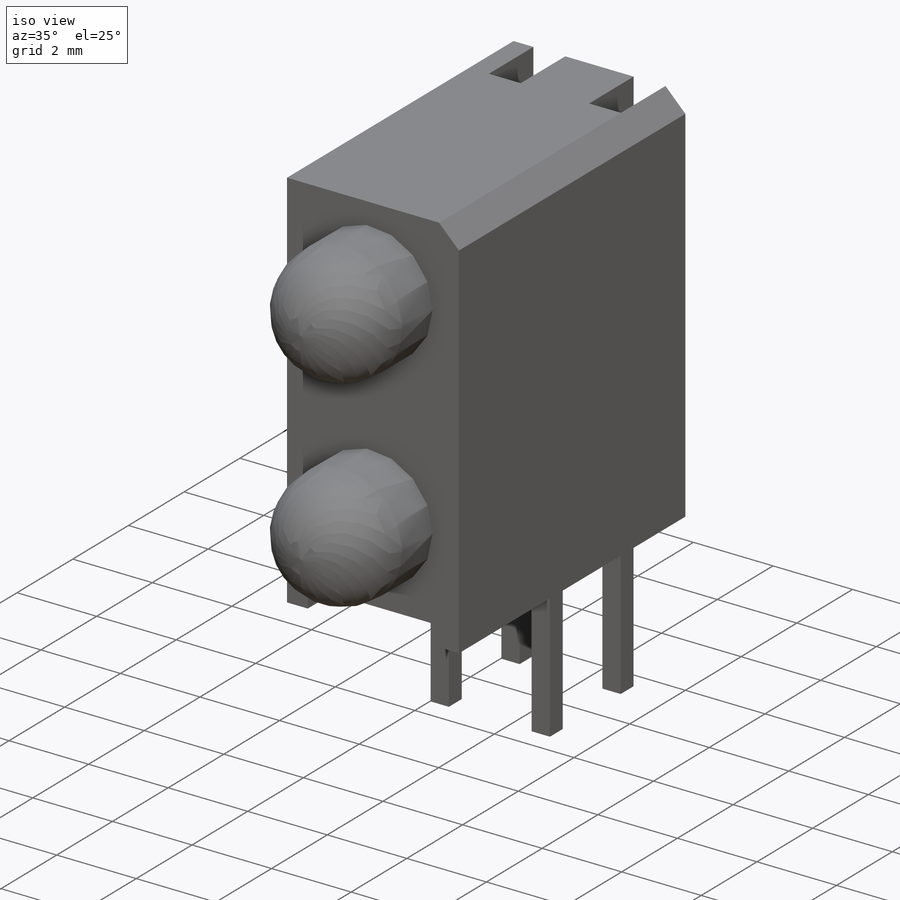
[diagram: iso view]
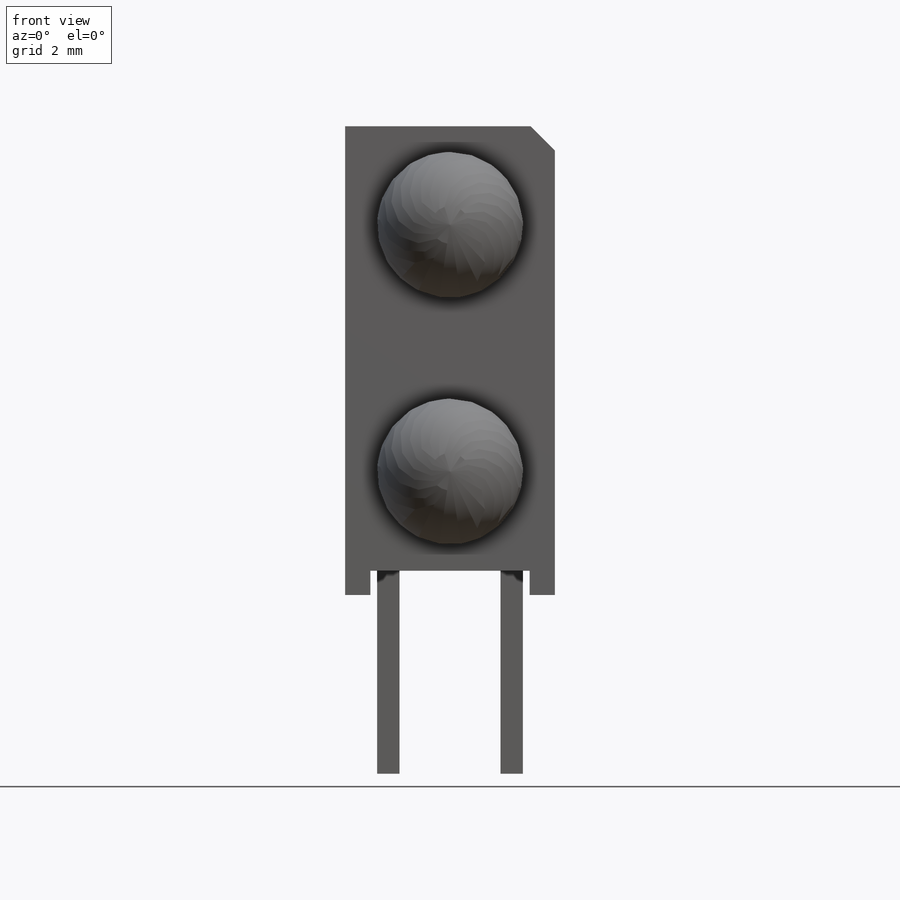
[diagram: front view]
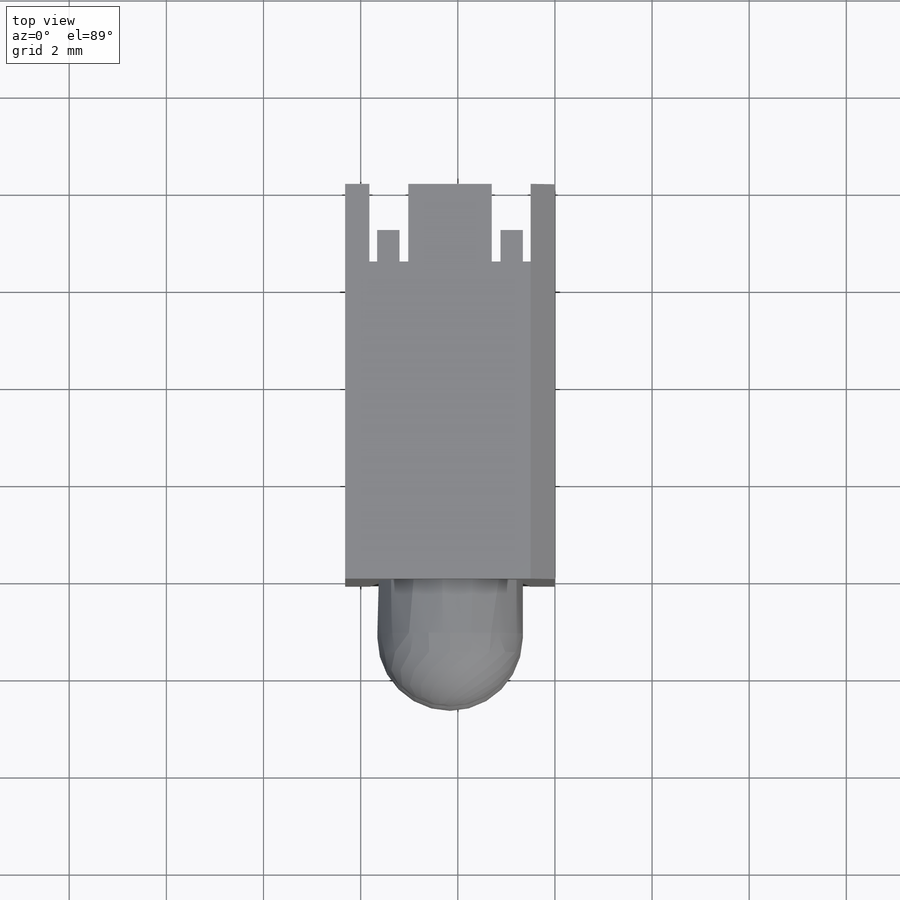
[diagram: top view]
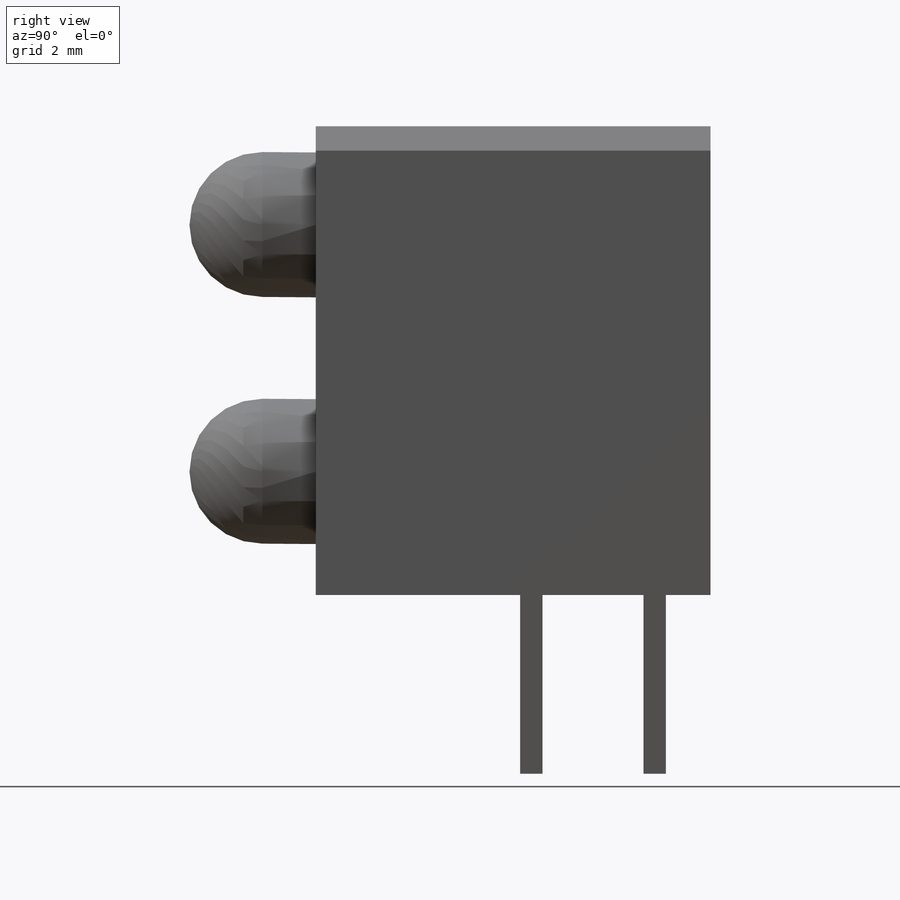
[diagram: right view]
SOLIDWORKS PART (.sldprt)
format: sldprt  version: not decoded by parser v0  size: 429,568 bytes
history: native  units: mm
features: sketch x9, plane x6, extrude x4, cut_extrude x2, revolve x2, material x1 (+12 scaffold rows collapsed)
feature tree (36):
  scaffold x12  (default folders/planes/origin — collapsed)
  material  "Matériau <non spécifié>"
  plane  "face"
  plane  "dessus"
  plane  "droite"
  sketch  "Esquisse1"  dims[c1.D1=4.32mm c1.D2=9.65mm c1.D3=3.4mm c1.D4=0.52mm c1.D5=0.4mm c1.D6=0.5mm c2.D3=0.52mm c2.D5=9.15mm c2.D9=0.5mm]
  extrude  "Extrusion1"  Depth=8.13mm
  sketch  "Esquisse2"  dims[D1=0.8mm D2=0.8mm D3=0.5mm D4=1.6mm]
  cut_extrude  "Extrusion2"  Depth=10.55mm
  plane  "Plan1"  Offset=3.68mm
  sketch  "Esquisse3"  dims[c1.D1=0.46mm c1.D2=2.54mm c1.D3=6.84mm c1.D4=1.27mm c1.D5=2.54mm c2.D1=0.46mm c2.D2=2.54mm c2.D3=1.27mm c2.D4=4.44mm]
  sketch  "Esquisse4"  dims[D1=2.54mm D2=0.22mm D3=0.22mm]
  cut_extrude  "Extrusion3"  Depth=0.5mm
  plane  "Plan2"  Offset=7.85mm
  sketch  "Esquisse5"
  extrude  "Extrusion4"  [1 undecoded]
  sketch  "Esquisse6"
  extrude  "Extrusion5"  [1 undecoded]
  sketch  "Esquisse7"
  extrude  "Extrusion6"  [1 undecoded]
  plane  "Plan3"  Offset=2.16mm
  sketch  "Esquisse9"  dims[D2=3.0mm D1=2.54mm D3=2.6mm]
  revolve  "Révolution1"  Angle=360deg
  sketch  "Esquisse10"  dims[c1.D2=3.0mm c1.D1=2.7mm c2.D1=~1.596147deg c3.D1=5.08mm c3.D3=2.6mm]
  revolve  "Révolution2"  Angle=360deg
decode coverage: 11 of 17 modeling features carry decoded parameters
note: ~ marks probable driven/reference dimensions
note: 3 parameter values undecoded
summary: no parameter record found for 3 features
note: suppression state not decoded; provenance and decode notes live in map.json
